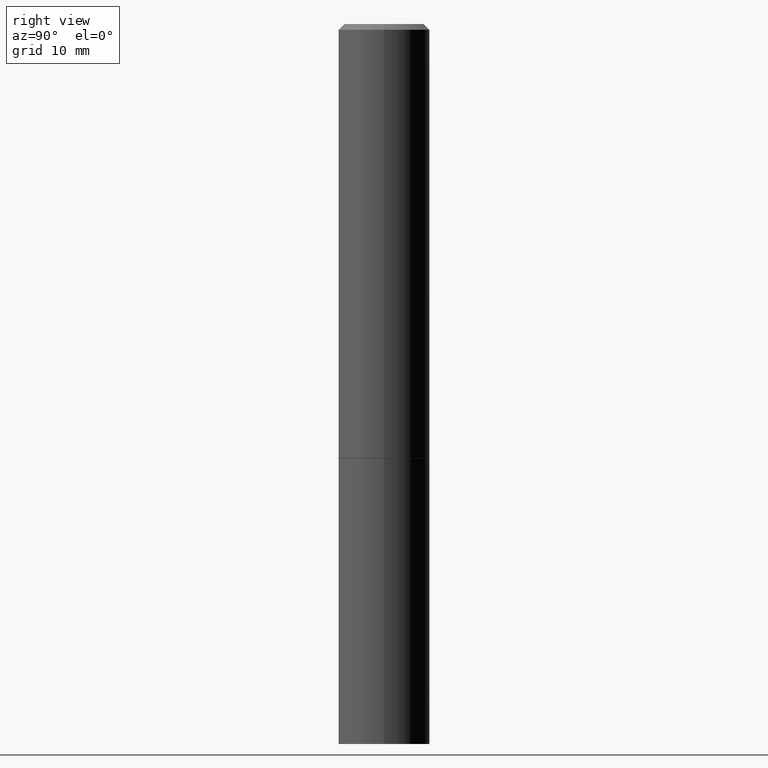
[diagram: clean part render]
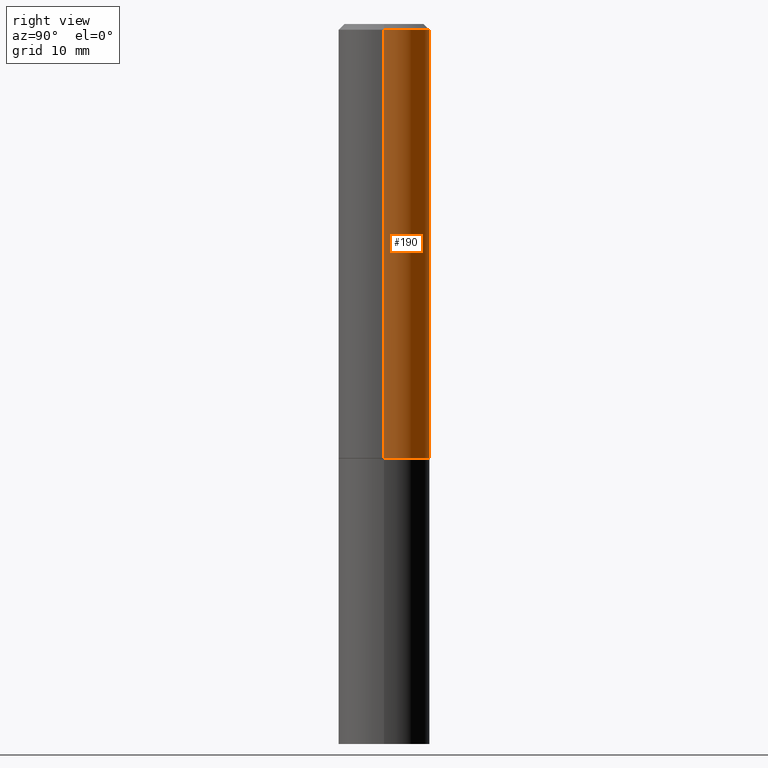
[diagram: same view with one face highlighted and labeled with its STEP entity id]
A machine part, right view. The second image highlights one B-rep face of the part: STEP entity #190.
In plain terms, the highlighted cylindrical surface (partial cylindrical patch) has radius 4.0005 mm, axis along (-0, 0, 1).
Its self-contained STEP definition (entity closure, byte-faithful):
#12 = DIRECTION ( 'NONE',  ( -2.445468806185136877E-29, 3.491481338843145188E-15, 1.000000000000000000 ) ) ;
#19 = CYLINDRICAL_SURFACE ( 'NONE', #295, 0.1574999999999998901 ) ;
#24 = CARTESIAN_POINT ( 'NONE',  ( 0.000000000000000000, 0.000000000000000000, 0.000000000000000000 ) ) ;
#25 = VERTEX_POINT ( 'NONE', #79 ) ;
#37 = AXIS2_PLACEMENT_3D ( 'NONE', #150, #299, #48 ) ;
#38 = DIRECTION ( 'NONE',  ( -2.445468806185136877E-29, 3.491481338843145188E-15, 1.000000000000000000 ) ) ;
#40 = LINE ( 'NONE', #89, #124 ) ;
#46 = CARTESIAN_POINT ( 'NONE',  ( 0.1574999999999998901, -1.099816621735586297E-15, 7.679978421878593829E-30 ) ) ;
#48 = DIRECTION ( 'NONE',  ( 1.000000000000000000, -6.982962677686268288E-15, 0.000000000000000000 ) ) ;
#67 = ORIENTED_EDGE ( 'NONE', *, *, #81, .T. ) ;
#69 = VERTEX_POINT ( 'NONE', #317 ) ;
#72 = ORIENTED_EDGE ( 'NONE', *, *, #342, .T. ) ;
#76 = CARTESIAN_POINT ( 'NONE',  ( 4.890937612370281041E-31, -6.982962677686302702E-17, -0.02000000000000003511 ) ) ;
#79 = CARTESIAN_POINT ( 'NONE',  ( -0.1574999999999998346, 1.029986994958722604E-15, -0.02000000000000003511 ) ) ;
#81 = EDGE_CURVE ( 'NONE', #96, #25, #40, .T. ) ;
#89 = CARTESIAN_POINT ( 'NONE',  ( -0.1574999999999998901, 1.119104808822157012E-15, -7.747322767151471379E-30 ) ) ;
#90 = FACE_OUTER_BOUND ( 'NONE', #298, .T. ) ;
#94 = DIRECTION ( 'NONE',  ( -2.445468806185136597E-29, 3.491481338843145583E-15, 1.000000000000000000 ) ) ;
#96 = VERTEX_POINT ( 'NONE', #152 ) ;
#118 = DIRECTION ( 'NONE',  ( -2.445468806185136597E-29, 3.491481338843145583E-15, 1.000000000000000000 ) ) ;
#119 = EDGE_CURVE ( 'NONE', #153, #25, #160, .T. ) ;
#124 = VECTOR ( 'NONE', #38, 39.37007874015748143 ) ;
#150 = CARTESIAN_POINT ( 'NONE',  ( 3.655975865246779683E-29, -5.219764601570503930E-15, -1.495000000000000329 ) ) ;
#152 = CARTESIAN_POINT ( 'NONE',  ( -0.1575000000000000011, -1.525692305351524236E-15, -1.495000000000000329 ) ) ;
#153 = VERTEX_POINT ( 'NONE', #221 ) ;
#160 = CIRCLE ( 'NONE', #339, 0.1574999999999998346 ) ;
#176 = ORIENTED_EDGE ( 'NONE', *, *, #265, .F. ) ;
#190 = ADVANCED_FACE ( 'NONE', ( #90 ), #19, .T. ) ;
#220 = VECTOR ( 'NONE', #12, 39.37007874015748143 ) ;
#221 = CARTESIAN_POINT ( 'NONE',  ( 0.1574999999999998346, -1.150358061425878091E-15, -0.02000000000000003511 ) ) ;
#265 = EDGE_CURVE ( 'NONE', #69, #153, #302, .T. ) ;
#295 = AXIS2_PLACEMENT_3D ( 'NONE', #24, #94, #332 ) ;
#296 = ORIENTED_EDGE ( 'NONE', *, *, #119, .F. ) ;
#298 = EDGE_LOOP ( 'NONE', ( #72, #67, #296, #176 ) ) ;
#299 = DIRECTION ( 'NONE',  ( -2.445468806185136597E-29, 3.491481338843145583E-15, 1.000000000000000000 ) ) ;
#302 = LINE ( 'NONE', #46, #220 ) ;
#309 = CIRCLE ( 'NONE', #37, 0.1575000000000000011 ) ;
#317 = CARTESIAN_POINT ( 'NONE',  ( 0.1575000000000000011, -6.319581223306091410E-15, -1.495000000000000329 ) ) ;
#330 = DIRECTION ( 'NONE',  ( 1.000000000000000000, -6.982962677686265922E-15, 0.000000000000000000 ) ) ;
#332 = DIRECTION ( 'NONE',  ( 1.000000000000000000, -6.982962677686266711E-15, 4.876176775795935793E-29 ) ) ;
#339 = AXIS2_PLACEMENT_3D ( 'NONE', #76, #118, #330 ) ;
#342 = EDGE_CURVE ( 'NONE', #69, #96, #309, .T. ) ;